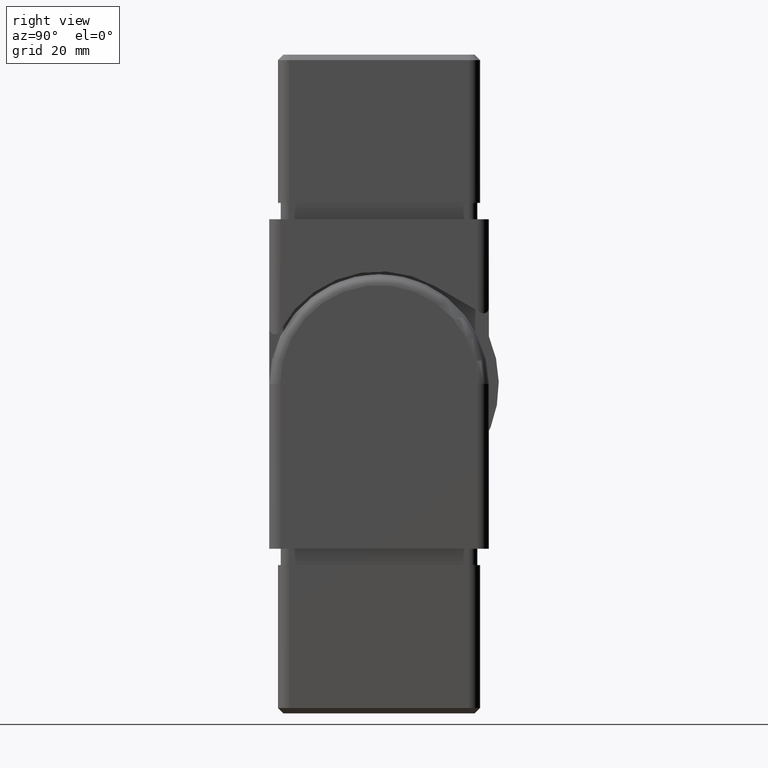
[diagram: clean part render]
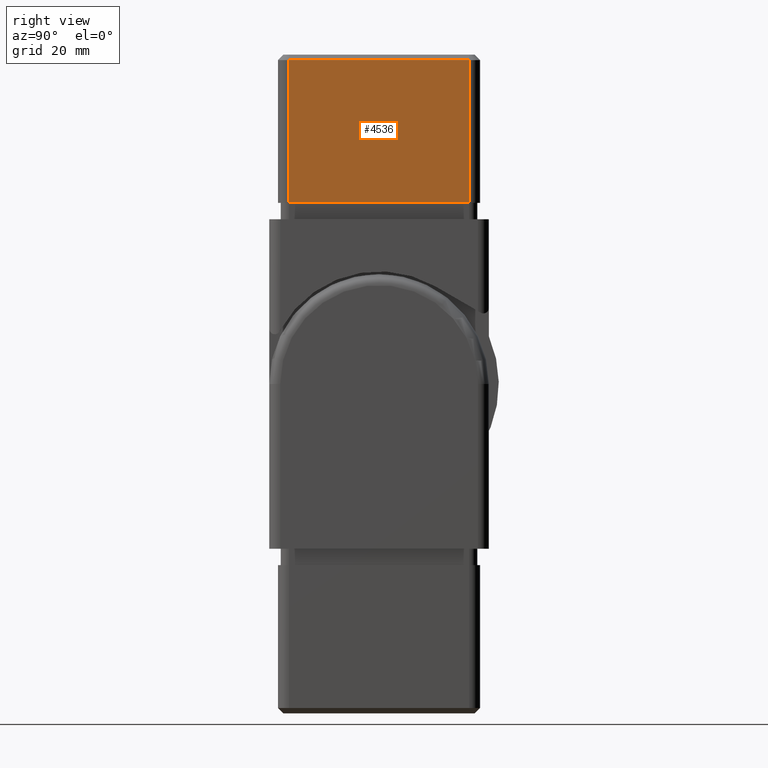
[diagram: same view with one face highlighted and labeled with its STEP entity id]
A machine part, right view. The second image highlights one B-rep face of the part: STEP entity #4536.
In plain terms, the highlighted planar face has unit normal (1, 0, 0).
Its self-contained STEP definition (entity closure, byte-faithful):
#393 = ORIENTED_EDGE ( 'NONE', *, *, #14414, .F. ) ;
#1298 = AXIS2_PLACEMENT_3D ( 'NONE', #7675, #5845, #11650 ) ;
#2959 = CARTESIAN_POINT ( 'NONE',  ( 18.40000000000000600, 0.0000000000000000000, 29.00000000000000400 ) ) ;
#3017 = LINE ( 'NONE', #19961, #5177 ) ;
#3041 = CARTESIAN_POINT ( 'NONE',  ( 18.40000000000000600, 16.39999999999999900, 29.00000000000000400 ) ) ;
#4536 = ADVANCED_FACE ( 'NONE', ( #11305 ), #19369, .T. ) ;
#5177 = VECTOR ( 'NONE', #10251, 1000.000000000000000 ) ;
#5564 = VERTEX_POINT ( 'NONE', #10092 ) ;
#5845 = DIRECTION ( 'NONE',  ( 1.000000000000000000, 0.0000000000000000000, -0.0000000000000000000 ) ) ;
#6704 = DIRECTION ( 'NONE',  ( -0.0000000000000000000, -0.0000000000000000000, -1.000000000000000000 ) ) ;
#7675 = CARTESIAN_POINT ( 'NONE',  ( 18.40000000000000600, 0.0000000000000000000, 30.00000000000000000 ) ) ;
#8705 = CARTESIAN_POINT ( 'NONE',  ( 18.40000000000000600, -16.39999999999999900, 30.00000000000000000 ) ) ;
#8890 = EDGE_CURVE ( 'NONE', #11445, #5564, #16436, .T. ) ;
#9533 = VECTOR ( 'NONE', #6704, 1000.000000000000000 ) ;
#10092 = CARTESIAN_POINT ( 'NONE',  ( 18.40000000000000600, -16.39999999999999900, 29.00000000000000400 ) ) ;
#10203 = EDGE_CURVE ( 'NONE', #5564, #18905, #20644, .T. ) ;
#10251 = DIRECTION ( 'NONE',  ( -0.0000000000000000000, -0.0000000000000000000, -1.000000000000000000 ) ) ;
#11197 = VERTEX_POINT ( 'NONE', #18237 ) ;
#11305 = FACE_OUTER_BOUND ( 'NONE', #18829, .T. ) ;
#11445 = VERTEX_POINT ( 'NONE', #3041 ) ;
#11650 = DIRECTION ( 'NONE',  ( -0.0000000000000000000, 0.0000000000000000000, -1.000000000000000000 ) ) ;
#13075 = CARTESIAN_POINT ( 'NONE',  ( 18.39999999999998800, 16.39999999999997700, 3.000000000000002700 ) ) ;
#14414 = EDGE_CURVE ( 'NONE', #11445, #11197, #3017, .T. ) ;
#15231 = ORIENTED_EDGE ( 'NONE', *, *, #15727, .F. ) ;
#15727 = EDGE_CURVE ( 'NONE', #11197, #18905, #21448, .T. ) ;
#16436 = LINE ( 'NONE', #2959, #18018 ) ;
#17114 = DIRECTION ( 'NONE',  ( 0.0000000000000000000, -1.000000000000000000, 0.0000000000000000000 ) ) ;
#17851 = ORIENTED_EDGE ( 'NONE', *, *, #8890, .T. ) ;
#18018 = VECTOR ( 'NONE', #17114, 1000.000000000000000 ) ;
#18237 = CARTESIAN_POINT ( 'NONE',  ( 18.39999999999998800, 16.39999999999997700, 3.000000000000002700 ) ) ;
#18829 = EDGE_LOOP ( 'NONE', ( #15231, #393, #17851, #19017 ) ) ;
#18905 = VERTEX_POINT ( 'NONE', #23273 ) ;
#19017 = ORIENTED_EDGE ( 'NONE', *, *, #10203, .T. ) ;
#19369 = PLANE ( 'NONE',  #1298 ) ;
#19961 = CARTESIAN_POINT ( 'NONE',  ( 18.40000000000000600, 16.39999999999999900, 30.00000000000000000 ) ) ;
#20644 = LINE ( 'NONE', #8705, #9533 ) ;
#21448 = LINE ( 'NONE', #13075, #24218 ) ;
#23273 = CARTESIAN_POINT ( 'NONE',  ( 18.39999999999998800, -16.40000000000002000, 3.000000000000002700 ) ) ;
#24218 = VECTOR ( 'NONE', #24807, 1000.000000000000000 ) ;
#24807 = DIRECTION ( 'NONE',  ( 0.0000000000000000000, -1.000000000000000000, 0.0000000000000000000 ) ) ;